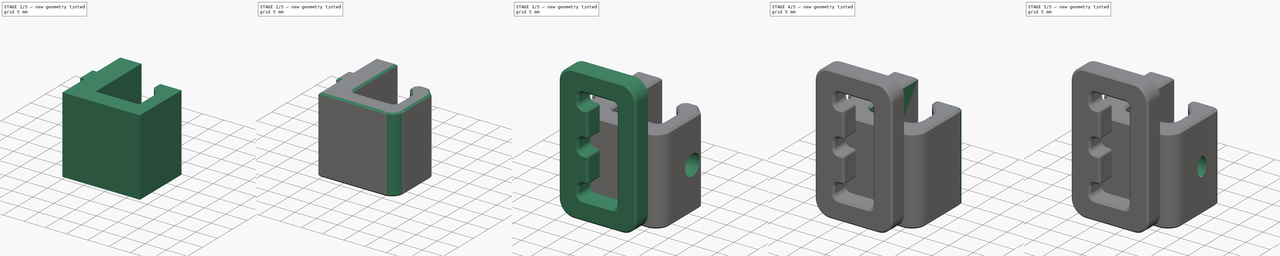
[diagram: build sequence overview — one tinted view per stage of 5, left to right]
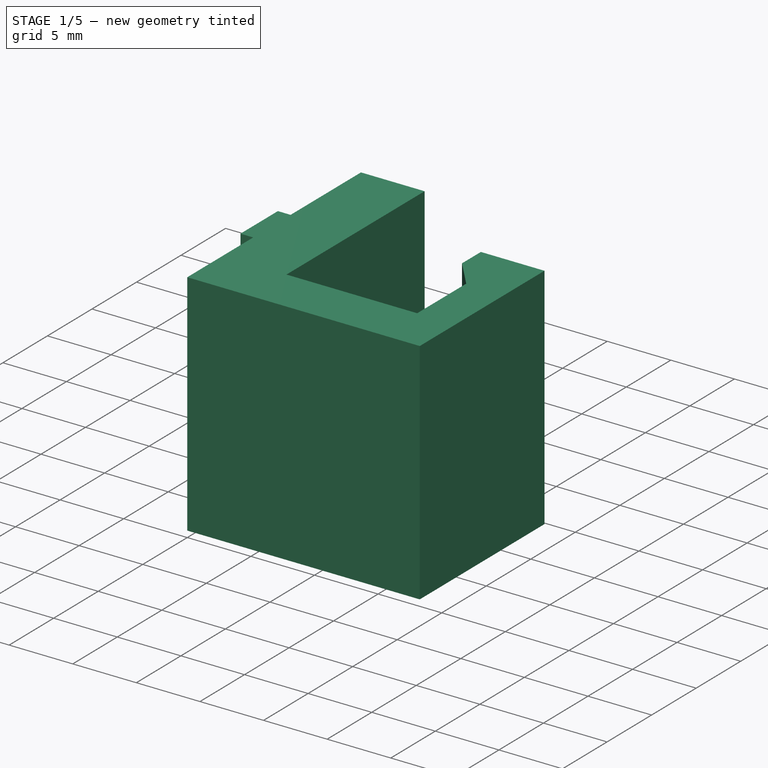
[diagram: stage 1 of 5 — iso view after this stage's code; geometry added in this stage tinted green]
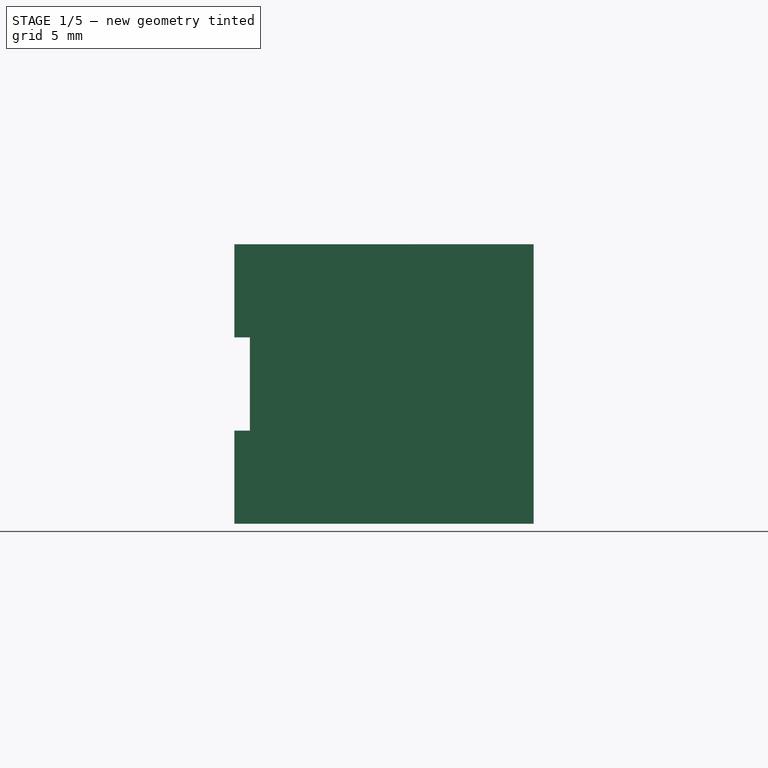
[diagram: stage 1 of 5 — front view after this stage's code; geometry added in this stage tinted green]
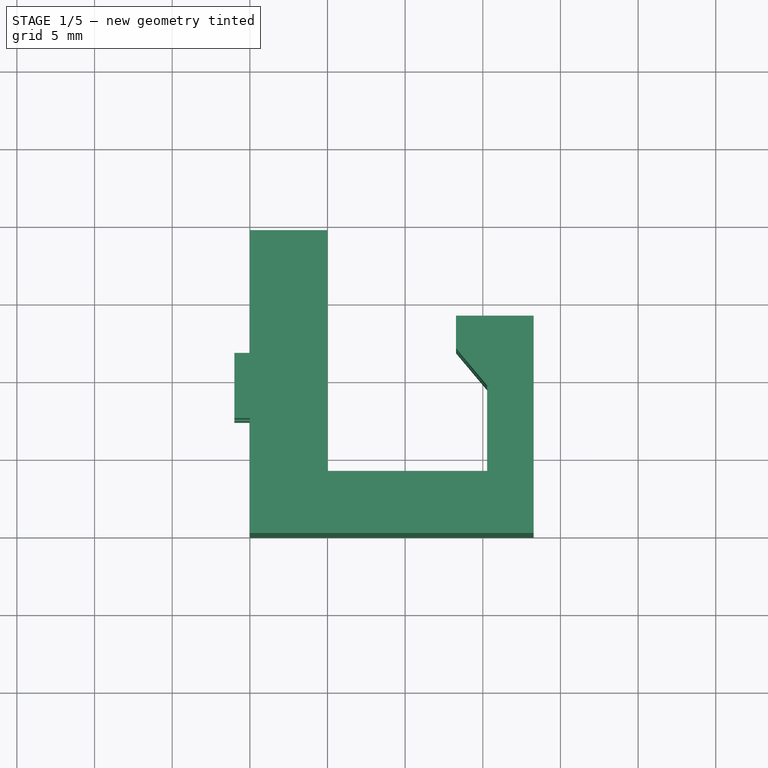
[diagram: stage 1 of 5 — top view after this stage's code; geometry added in this stage tinted green]
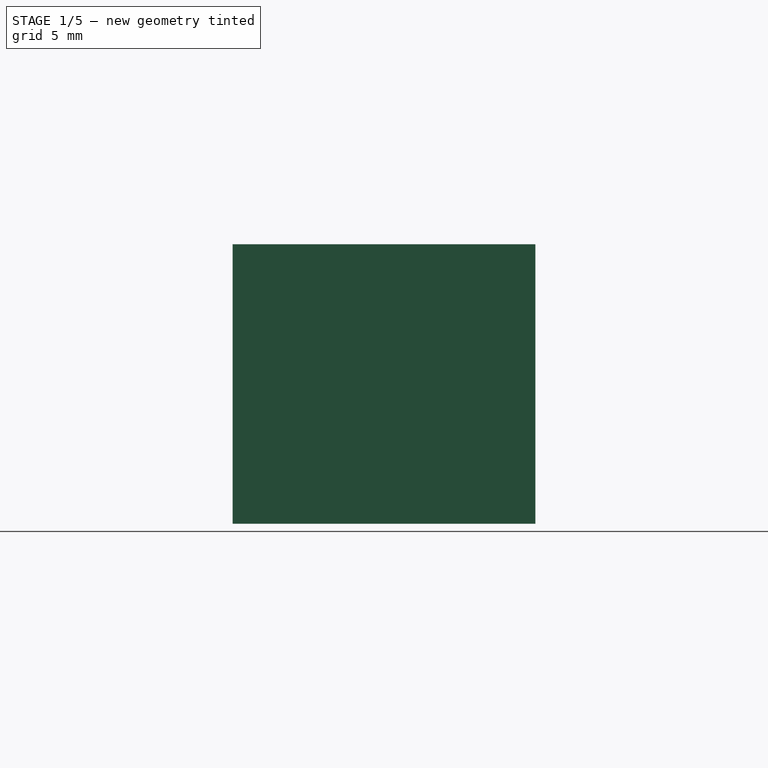
[diagram: stage 1 of 5 — right view after this stage's code; geometry added in this stage tinted green]
FCSTD DOCUMENT  (FreeCAD 0.19R24366 (Git))
Label: kotatsu-blanket-hooker
License: All rights reserved
LicenseURL: http://en.wikipedia.org/wiki/All_rights_reserved
objects: Sketcher::SketchObject×13, PartDesign::Pocket×11, PartDesign::Chamfer×10, PartDesign::Fillet×7, PartDesign::Body×4, PartDesign::Pad×2, PartDesign::FeatureBase×2
note: 79 computed .brp shape members not serialized (recipe doc carries the construction recipe); baked Part::Feature solids carry a one-line shape summary decoded from their .brp

FEATURE [Sketcher::SketchObject] Sketch
  FullyConstrained = true
  MapMode = 5
  Support = -> [XY_Plane]
  sketch-geometry (13):
    g0: LineSegment StartX=0 StartY=0 StartZ=0 EndX=0 EndY=7.4 EndZ=0
    g1: LineSegment StartX=0 StartY=7.4 StartZ=0 EndX=-1 EndY=7.4 EndZ=0
    g2: LineSegment StartX=-1 StartY=7.4 StartZ=0 EndX=-1 EndY=11.6 EndZ=0
    g3: LineSegment StartX=-1 StartY=11.6 StartZ=0 EndX=0 EndY=11.6 EndZ=0
    g4: LineSegment StartX=0 StartY=11.6 StartZ=0 EndX=0 EndY=19.5 EndZ=0
    g5: LineSegment StartX=0 StartY=19.5 StartZ=0 EndX=5 EndY=19.5 EndZ=0
    g6: LineSegment StartX=5 StartY=19.5 StartZ=0 EndX=5 EndY=4 EndZ=0
    g7: LineSegment StartX=5 StartY=4 StartZ=0 EndX=15.2759 EndY=4 EndZ=0
    g8: LineSegment StartX=15.2759 StartY=4 StartZ=0 EndX=15.2759 EndY=9.5 EndZ=0
    g9: LineSegment StartX=15.2759 StartY=9.5 StartZ=0 EndX=11.5 EndY=14 EndZ=0
    g10: LineSegment StartX=11.5 StartY=14 StartZ=0 EndX=18.2759 EndY=14 EndZ=0
    g11: LineSegment StartX=18.2759 StartY=14 StartZ=0 EndX=18.2759 EndY=0 EndZ=0
    g12: LineSegment StartX=18.2759 StartY=0 StartZ=0 EndX=0 EndY=0 EndZ=0
  constraints (38):
    c: Coincident(g-1,g0)
    c: PointOnObject(g0,g-2)
    c: Coincident(g0,g1)
    c: Horizontal(g1)
    c: Coincident(g1,g2)
    c: Vertical(g2)
    c: Coincident(g2,g3)
    c: PointOnObject(g3,g-2)
    c: Horizontal(g3)
    c: Coincident(g3,g4)
    c: PointOnObject(g4,g-2)
    c: Coincident(g4,g5)
    c: Horizontal(g5)
    c: Coincident(g5,g6)
    c: Vertical(g6)
    c: Coincident(g6,g7)
    c: Horizontal(g7)
    c: Coincident(g7,g8)
    c: Coincident(g8,g9)
    c: Coincident(g9,g10)
    c: Horizontal(g10)
    c: Coincident(g10,g11)
    c: PointOnObject(g11,g-1)
    c: Vertical(g11)
    c: Coincident(g11,g12)
    c: Coincident(g12,g0)
    c: DistanceY(g2,g2) = 4.2
    c: DistanceY(g0,g0) = 7.4
    c: DistanceY(g4,g4) = 7.9
    c: DistanceY(g10,g5) = 5.5
    c: DistanceX(g5,g5) = 5
    c: Angle(g9,g10) = 0.872665
    c: Vertical(g8)
    c: DistanceX(g6,g9) = 6.5
    c: DistanceX(g7,g11) = 3
    c: DistanceY(g8,g8) = 5.5
    c: DistanceY(g0,g6) = 4
    c: DistanceX(g3,g3) = 1
FEATURE [PartDesign::Pad] Pad
  Direction = (1,1,1)
  Length = 18
  Length2 = 100
  Profile = -> Sketch
  Type = 0
FEATURE [PartDesign::Body] Body002  label="ring"
  Group = -> [Sketch006,Pad001,Fillet002,Fillet003,Fillet004,Chamfer005]
  Origin = -> Origin002
  Placement = pos=(24,9,23) rot=(0,1,0;3.14159rad)
  Tip = -> Chamfer005
FEATURE [PartDesign::FeatureBase] Clone001
  BaseFeature = -> Pad
FEATURE [Sketcher::SketchObject] Sketch007
  ExternalGeometry = -> [Clone001]
  FullyConstrained = true
  MapMode = 5
  Placement = pos=(0,0,0) rot=(1,0,0;3.14159rad)
  Support = -> [Clone001]
  sketch-geometry (3):
    g0: LineSegment StartX=13.2759 StartY=-14 StartZ=0 EndX=13.2759 EndY=-11.8835 EndZ=0
    g1: LineSegment StartX=13.2759 StartY=-11.8835 StartZ=0 EndX=11.5 EndY=-14 EndZ=0
    g2: LineSegment StartX=11.5 StartY=-14 StartZ=0 EndX=13.2759 EndY=-14 EndZ=0
  constraints (8):
    c: PointOnObject(g0,g-4)
    c: PointOnObject(g0,g-3)
    c: Vertical(g0)
    c: Coincident(g0,g1)
    c: Coincident(g1,g-4)
    c: Coincident(g1,g2)
    c: Coincident(g2,g0)
    c: DistanceX(g0,g-3) = 2
FEATURE [PartDesign::Pocket] Pocket005
  BaseFeature = -> Clone001
  Length = 5
  Length2 = 100
  Profile = -> Sketch007
  Type = 1
FEATURE [Sketcher::SketchObject] Sketch008
  FullyConstrained = true
  MapMode = 5
  Placement = pos=(5,0,0) rot=(0.57735,0.57735,0.57735;2.0944rad)
  Support = -> [Pocket005]
  sketch-geometry (1):
    g0: Circle CenterX=9.5 CenterY=9 CenterZ=0 NormalX=0 NormalY=0 NormalZ=1 AngleXU=0 Radius=2.15
  constraints (3):
    c: DistanceY(g-1,g0) = 9
    c: DistanceX(g-1,g0) = 9.5
    c: Radius(g0) = 2.15
FEATURE [PartDesign::Pocket] Pocket006
  BaseFeature = -> Pocket005
  Length = 5
  Length2 = 100
  Profile = -> Sketch008
  Type = 1
FEATURE [Sketcher::SketchObject] Sketch009
  ExternalGeometry = -> [Pocket006]
  FullyConstrained = true
  MapMode = 5
  Placement = pos=(0,14,0) rot=(0,0.707107,0.707107;3.14159rad)
  Support = -> [Pocket006]
  sketch-geometry (4):
    g0: LineSegment StartX=-13.2759 StartY=16 StartZ=0 EndX=-15.2759 EndY=12 EndZ=0
    g1: LineSegment StartX=-15.2759 StartY=12 StartZ=0 EndX=-15.2759 EndY=6 EndZ=0
    g2: LineSegment StartX=-15.2759 StartY=6 StartZ=0 EndX=-13.2759 EndY=2 EndZ=0
    g3: LineSegment StartX=-13.2759 StartY=2 StartZ=0 EndX=-13.2759 EndY=16 EndZ=0
  constraints (12):
    c: PointOnObject(g0,g-3)
    c: Coincident(g0,g1)
    c: Vertical(g1)
    c: Coincident(g1,g2)
    c: PointOnObject(g2,g-3)
    c: Coincident(g2,g3)
    c: Coincident(g3,g0)
    c: DistanceX(g0,g-3) = 2
    c: DistanceY(g0,g-3) = 2
    c: DistanceY(g-3,g2) = 2
    c: DistanceY(g0,g0) = 4
    c: DistanceY(g2,g1) = 4
FEATURE [PartDesign::Pocket] Pocket007
  BaseFeature = -> Pocket006
  Length = 5
  Length2 = 100
  Profile = -> Sketch009
  Type = 0
FEATURE [Sketcher::SketchObject] Sketch010
  ExternalGeometry = -> [Pocket007]
  FullyConstrained = true
  MapMode = 5
  Placement = pos=(-1,0,0) rot=(0.57735,-0.57735,-0.57735;2.0944rad)
  Support = -> [Pocket007]
  sketch-geometry (4):
    g0: LineSegment StartX=-11.6 StartY=12 StartZ=0 EndX=-7.4 EndY=12 EndZ=0
    g1: LineSegment StartX=-7.4 StartY=12 StartZ=0 EndX=-7.4 EndY=6 EndZ=0
    g2: LineSegment StartX=-7.4 StartY=6 StartZ=0 EndX=-11.6 EndY=6 EndZ=0
    g3: LineSegment StartX=-11.6 StartY=6 StartZ=0 EndX=-11.6 EndY=12 EndZ=0
  constraints (12):
    c: Coincident(g0,g1)
    c: Coincident(g1,g2)
    c: Coincident(g2,g3)
    c: Coincident(g3,g0)
    c: Horizontal(g0)
    c: Horizontal(g2)
    c: Vertical(g1)
    c: Vertical(g3)
    c: PointOnObject(g0,g-3)
    c: PointOnObject(g1,g-4)
    c: DistanceY(g0,g-3) = 6
    c: DistanceY(g-4,g1) = 6
FEATURE [PartDesign::Pocket] Pocket008
  BaseFeature = -> Pocket007
  Length = 1
  Length2 = 100
  Profile = -> Sketch010
  Type = 0
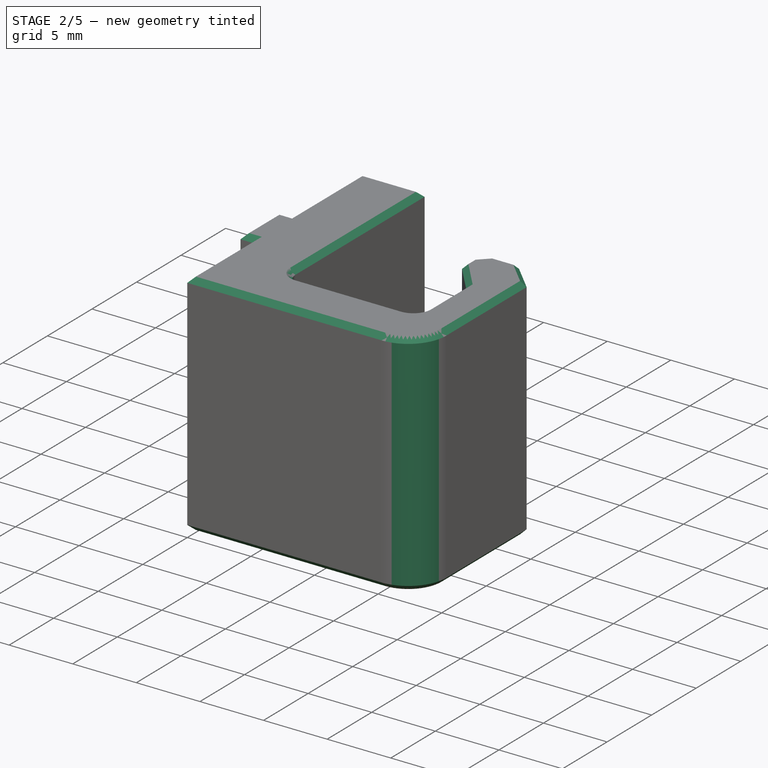
[diagram: stage 2 of 5 — iso view after this stage's code; geometry added in this stage tinted green]
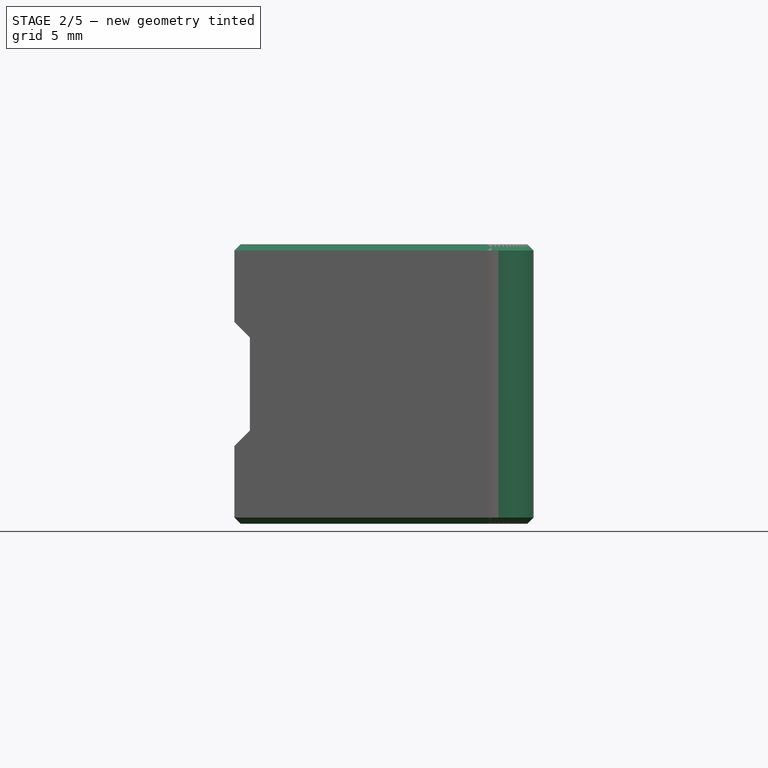
[diagram: stage 2 of 5 — front view after this stage's code; geometry added in this stage tinted green]
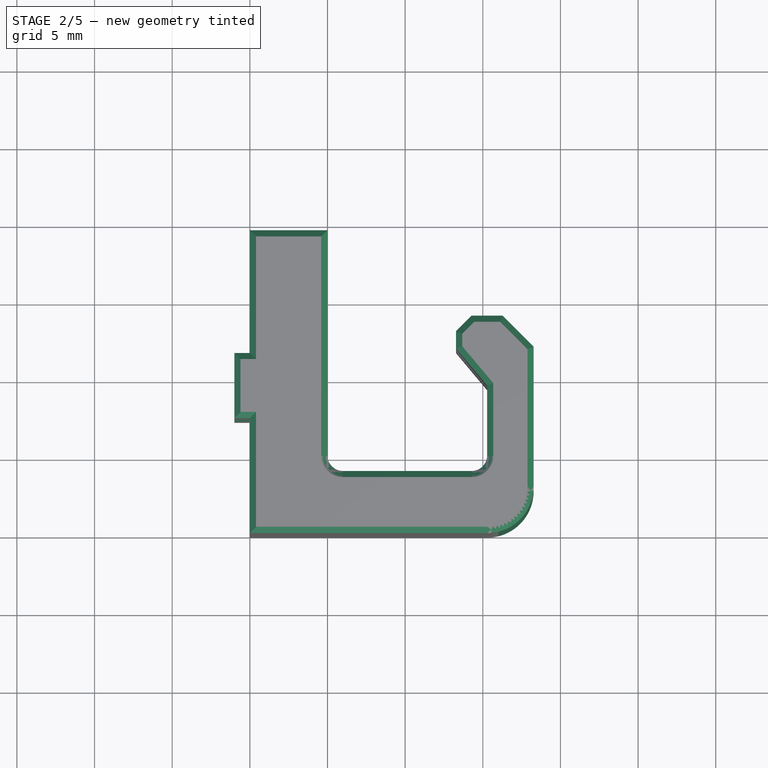
[diagram: stage 2 of 5 — top view after this stage's code; geometry added in this stage tinted green]
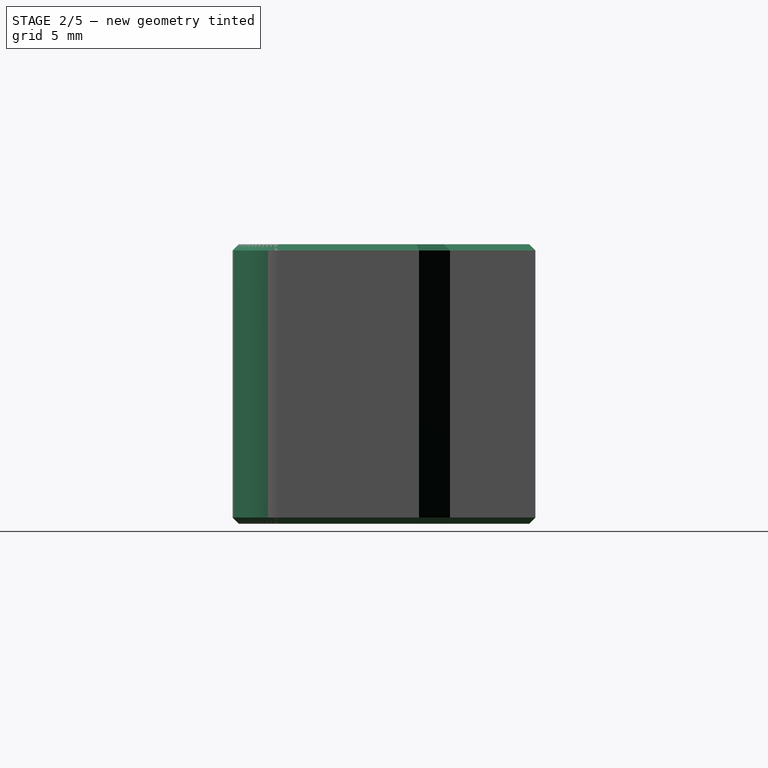
[diagram: stage 2 of 5 — right view after this stage's code; geometry added in this stage tinted green]
FEATURE [PartDesign::Chamfer] Chamfer006
  Angle = 45
  Base = -> Pocket008 [Edge74,Edge72]
  BaseFeature = -> Pocket008
  ChamferType = 0
  FlipDirection = false
  Refine = true
  Size = 0.99
  Size2 = 1
  SupportTransform = false
FEATURE [PartDesign::Fillet] Fillet005
  Base = -> Chamfer006 [Edge42,Edge41]
  BaseFeature = -> Chamfer006
  Radius = 1
  SupportTransform = false
FEATURE [PartDesign::Fillet] Fillet006
  Base = -> Fillet005 [Edge42]
  BaseFeature = -> Fillet005
  Radius = 3
  SupportTransform = false
FEATURE [PartDesign::Chamfer] Chamfer007
  Angle = 45
  Base = -> Fillet006 [Edge19]
  BaseFeature = -> Fillet006
  ChamferType = 0
  FlipDirection = false
  Size = 2
  Size2 = 1
  SupportTransform = false
FEATURE [PartDesign::Chamfer] Chamfer008
  Angle = 45
  Base = -> Chamfer007 [Edge29,Edge26]
  BaseFeature = -> Chamfer007
  ChamferType = 0
  FlipDirection = false
  Size = 1
  Size2 = 1
  SupportTransform = false
FEATURE [Sketcher::SketchObject] Sketch011
  ExternalGeometry = -> [Chamfer008]
  FullyConstrained = true
  MapMode = 5
  Placement = pos=(5,0,0) rot=(0.57735,0.57735,0.57735;2.0944rad)
  Support = -> [Chamfer008]
  sketch-geometry (4):
    g0: ArcOfCircle CenterX=9.5 CenterY=9 CenterZ=0 NormalX=0 NormalY=0 NormalZ=1 AngleXU=0 Radius=4.5 StartAngle=0 EndAngle=3.14159
    g1: LineSegment StartX=5 StartY=0 StartZ=0 EndX=5 EndY=9 EndZ=0
    g2: LineSegment StartX=14 StartY=0 StartZ=0 EndX=14 EndY=9 EndZ=0
    g3: LineSegment StartX=5 StartY=0 StartZ=0 EndX=14 EndY=0 EndZ=0
  constraints (12):
    c: Coincident(g0,g-3)
    c: Horizontal(g0,g0)
    c: Horizontal(g0,g0)
    c: PointOnObject(g1,g-1)
    c: Coincident(g1,g0)
    c: Vertical(g1)
    c: PointOnObject(g2,g-1)
    c: Coincident(g2,g0)
    c: Vertical(g2)
    c: Coincident(g3,g1)
    c: Coincident(g3,g2)
    c: Radius(g0) = 4.5
FEATURE [PartDesign::Pocket] Pocket009
  BaseFeature = -> Chamfer008
  Length = 2
  Length2 = 100
  Profile = -> Sketch011
  Type = 0
FEATURE [PartDesign::Chamfer] Chamfer009
  Angle = 45
  Base = -> Pocket009 [Face24,Face1]
  BaseFeature = -> Pocket009
  ChamferType = 0
  FlipDirection = false
  Size = 0.4
  Size2 = 1
  SupportTransform = false
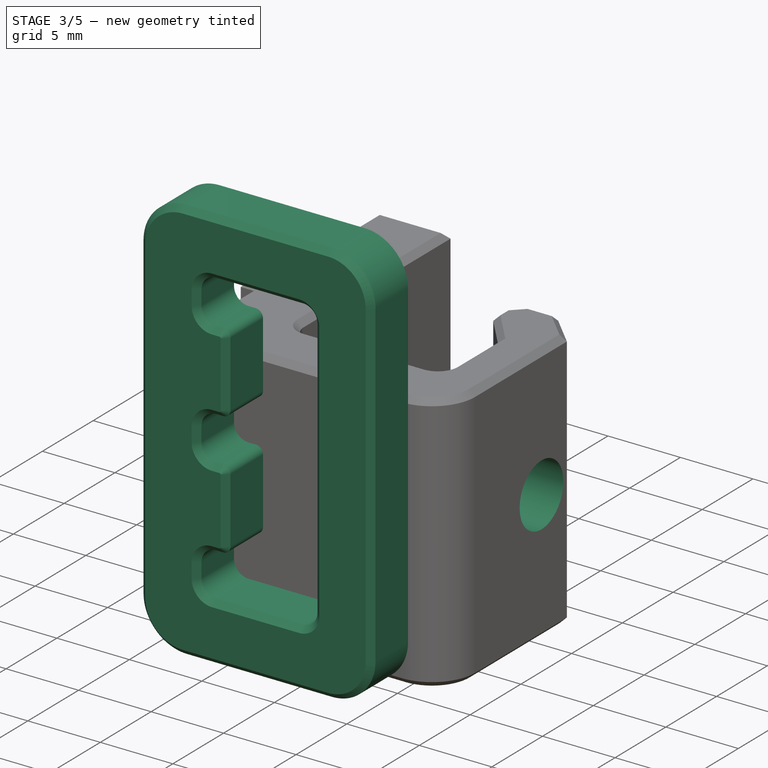
[diagram: stage 3 of 5 — iso view after this stage's code; geometry added in this stage tinted green]
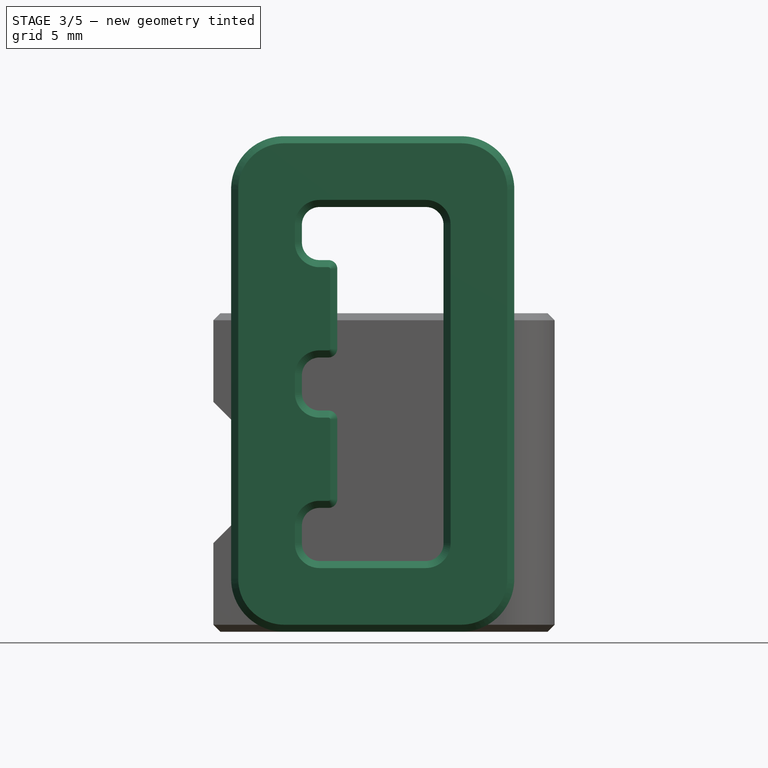
[diagram: stage 3 of 5 — front view after this stage's code; geometry added in this stage tinted green]
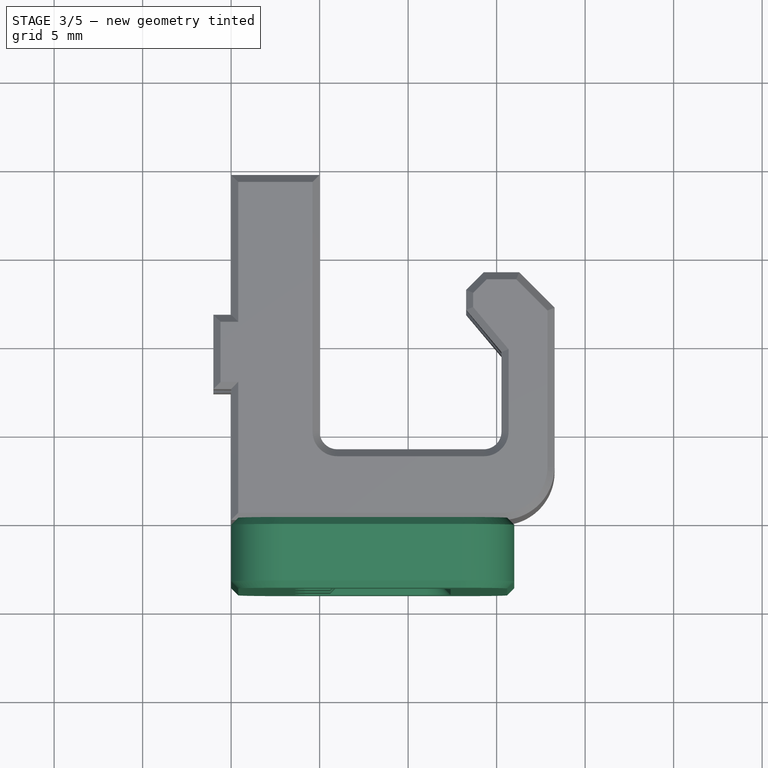
[diagram: stage 3 of 5 — top view after this stage's code; geometry added in this stage tinted green]
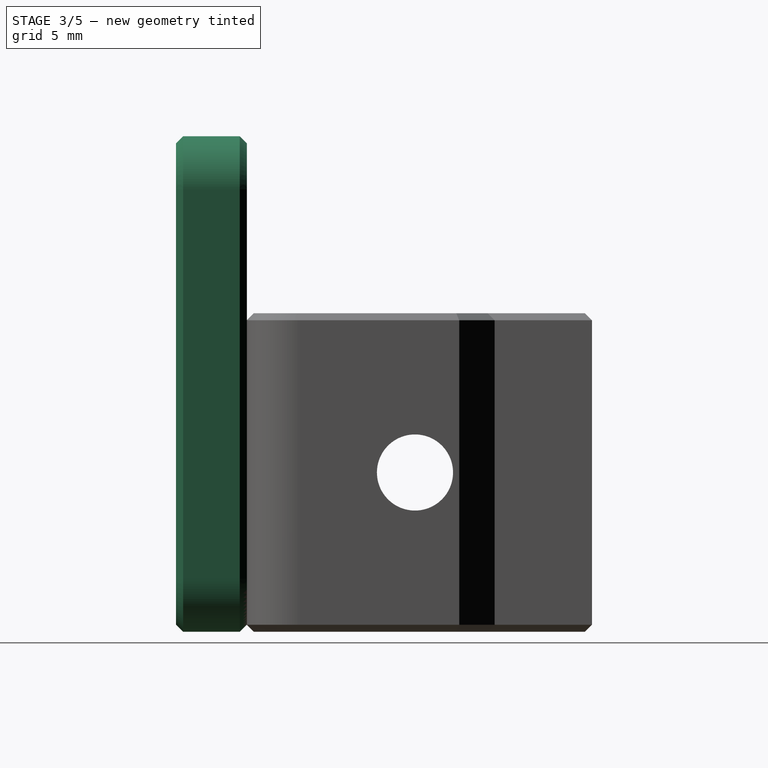
[diagram: stage 3 of 5 — right view after this stage's code; geometry added in this stage tinted green]
FEATURE [PartDesign::Body] Body001  label="m4-base"
  BaseFeature = -> Body
  Group = -> [Clone,Sketch001,Pocket,Sketch002,Pocket001,Sketch003,Pocket002,Sketch004,Pocket003,Sketch005,Pocket004,Chamfer004]
  Origin = -> Origin001
  Tip = -> Chamfer004
FEATURE [Sketcher::SketchObject] Sketch006
  FullyConstrained = true
  MapMode = 5
  Placement = pos=(0,0,0) rot=(1,0,0;1.5708rad)
  Support = -> [XZ_Plane002]
  sketch-geometry (16):
    g0: LineSegment StartX=0 StartY=0 StartZ=0 EndX=16 EndY=0 EndZ=0
    g1: LineSegment StartX=16 StartY=0 StartZ=0 EndX=16 EndY=28 EndZ=0
    g2: LineSegment StartX=16 StartY=28 StartZ=0 EndX=0 EndY=28 EndZ=0
    g3: LineSegment StartX=0 StartY=28 StartZ=0 EndX=0 EndY=0 EndZ=0
    g4: LineSegment StartX=4 StartY=24 StartZ=0 EndX=12 EndY=24 EndZ=0
    g5: LineSegment StartX=12 StartY=24 StartZ=0 EndX=12 EndY=4 EndZ=0
    g6: LineSegment StartX=12 StartY=4 StartZ=0 EndX=4 EndY=4 EndZ=0
    g7: LineSegment StartX=4 StartY=4 StartZ=0 EndX=4 EndY=7 EndZ=0
    g8: LineSegment StartX=4 StartY=7 StartZ=0 EndX=6 EndY=7 EndZ=0
    g9: LineSegment StartX=6 StartY=7 StartZ=0 EndX=6 EndY=12.5 EndZ=0
    g10: LineSegment StartX=6 StartY=12.5 StartZ=0 EndX=4 EndY=12.5 EndZ=0
    g11: LineSegment StartX=4 StartY=12.5 StartZ=0 EndX=4 EndY=15.5 EndZ=0
    g12: LineSegment StartX=4 StartY=15.5 StartZ=0 EndX=6 EndY=15.5 EndZ=0
    g13: LineSegment StartX=6 StartY=15.5 StartZ=0 EndX=6 EndY=21 EndZ=0
    g14: LineSegment StartX=6 StartY=21 StartZ=0 EndX=4 EndY=21 EndZ=0
    g15: LineSegment StartX=4 StartY=21 StartZ=0 EndX=4 EndY=24 EndZ=0
  constraints (47):
    c: Coincident(g0,g1)
    c: Coincident(g1,g2)
    c: Coincident(g2,g3)
    c: Coincident(g3,g0)
    c: Horizontal(g0)
    c: Horizontal(g2)
    c: Vertical(g1)
    c: Vertical(g3)
    c: Coincident(g0,g-1)
    c: Horizontal(g4)
    c: Coincident(g4,g5)
    c: Vertical(g5)
    c: Coincident(g5,g6)
    c: Horizontal(g6)
    c: Coincident(g6,g7)
    c: Vertical(g7)
    c: Coincident(g7,g8)
    c: Horizontal(g8)
    c: Coincident(g8,g9)
    c: Vertical(g9)
    c: Coincident(g9,g10)
    c: Horizontal(g10)
    c: Coincident(g10,g11)
    c: Vertical(g11)
    c: Coincident(g11,g12)
    c: Horizontal(g12)
    c: Coincident(g12,g13)
    c: Vertical(g13)
    c: Coincident(g13,g14)
    c: Horizontal(g14)
    c: Coincident(g14,g15)
    c: Coincident(g15,g4)
    c: Vertical(g15)
    c: Vertical(g14,g11)
    c: Vertical(g11,g7)
    c: Equal(g7,g11)
    c: Equal(g11,g15)
    c: Equal(g9,g13)
    c: DistanceY(g5,g5) = 20
    c: DistanceY(g15,g15) = 3
    c: Vertical(g12,g9)
    c: DistanceX(g14,g14) = 2
    c: DistanceX(g2,g4) = 4
    c: DistanceX(g4,g1) = 4
    c: DistanceY(g0,g6) = 4
    c: DistanceY(g4,g2) = 4
    c: DistanceX(g13,g4) = 6
FEATURE [PartDesign::Pad] Pad001
  Direction = (1,1,1)
  Length = 4
  Length2 = 100
  Placement = pos=(0,0,0) rot=(1,0,0;1.5708rad)
  Profile = -> Sketch006
  Type = 0
FEATURE [PartDesign::Fillet] Fillet002
  Base = -> Pad001 [Edge1,Edge8,Edge5,Edge2]
  BaseFeature = -> Pad001
  Placement = pos=(0,0,0) rot=(1,0,0;1.5708rad)
  Radius = 3
  SupportTransform = false
FEATURE [PartDesign::Fillet] Fillet003
  Base = -> Fillet002 [Edge51,Edge50,Edge49,Edge57,Edge53,Edge60,Edge56,Edge52]
  BaseFeature = -> Fillet002
  Placement = pos=(0,0,0) rot=(1,0,0;1.5708rad)
  Radius = 1
  SupportTransform = false
FEATURE [PartDesign::Fillet] Fillet004
  Base = -> Fillet003 [Edge44,Edge48,Edge66,Edge62]
  BaseFeature = -> Fillet003
  Placement = pos=(0,0,0) rot=(1,0,0;1.5708rad)
  Radius = 0.5
  SupportTransform = false
FEATURE [PartDesign::Chamfer] Chamfer005
  Angle = 45
  Base = -> Fillet004 [Face1,Face34]
  BaseFeature = -> Fillet004
  ChamferType = 0
  FlipDirection = false
  Placement = pos=(0,0,0) rot=(1,0,0;1.5708rad)
  Size = 0.4
  Size2 = 1
  SupportTransform = false
FEATURE [Sketcher::SketchObject] Sketch012
  ExternalGeometry = -> [Chamfer009]
  FullyConstrained = true
  MapMode = 5
  Placement = pos=(18.2759,0,0) rot=(0.57735,0.57735,0.57735;2.0944rad)
  Support = -> [Chamfer009]
  sketch-geometry (1):
    g0: Circle CenterX=9.5 CenterY=9 CenterZ=0 NormalX=0 NormalY=0 NormalZ=1 AngleXU=0 Radius=2.15
  constraints (2):
    c: Coincident(g0,g-3)
    c: Radius(g0) = 2.15
FEATURE [PartDesign::Pocket] Pocket010
  BaseFeature = -> Chamfer009
  Length = 5
  Length2 = 100
  Profile = -> Sketch012
  Type = 0
FEATURE [PartDesign::Body] Body003
  Group = -> [Clone001,Sketch007,Pocket005,Sketch008,Pocket006,Sketch009,Pocket007,Sketch010,Pocket008,Chamfer006,Fillet005,Fillet006,Chamfer007,Chamfer008,Sketch011,Pocket009,Chamfer009,Sketch012,Pocket010]
  Origin = -> Origin003
  Tip = -> Pocket010
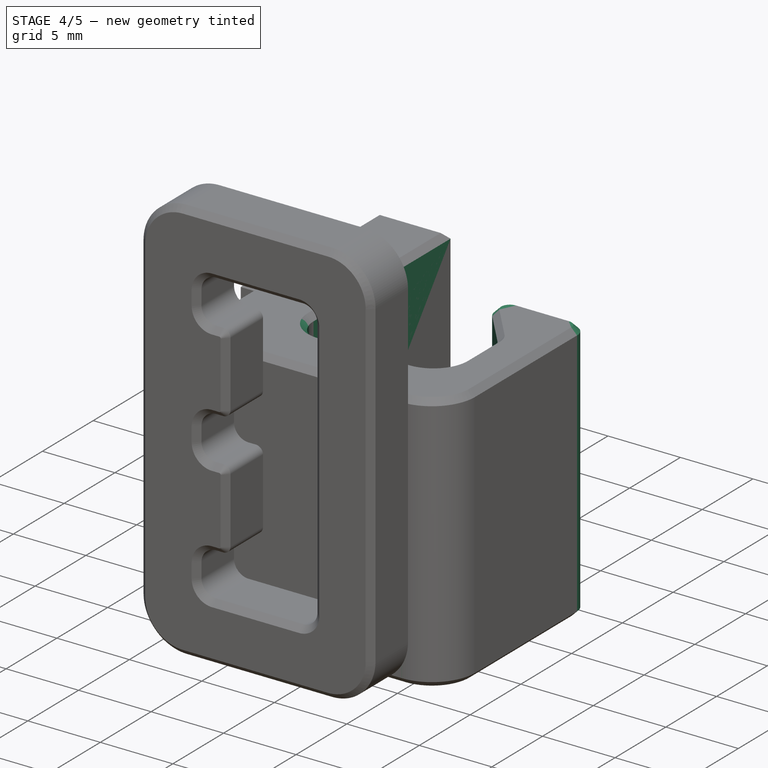
[diagram: stage 4 of 5 — iso view after this stage's code; geometry added in this stage tinted green]
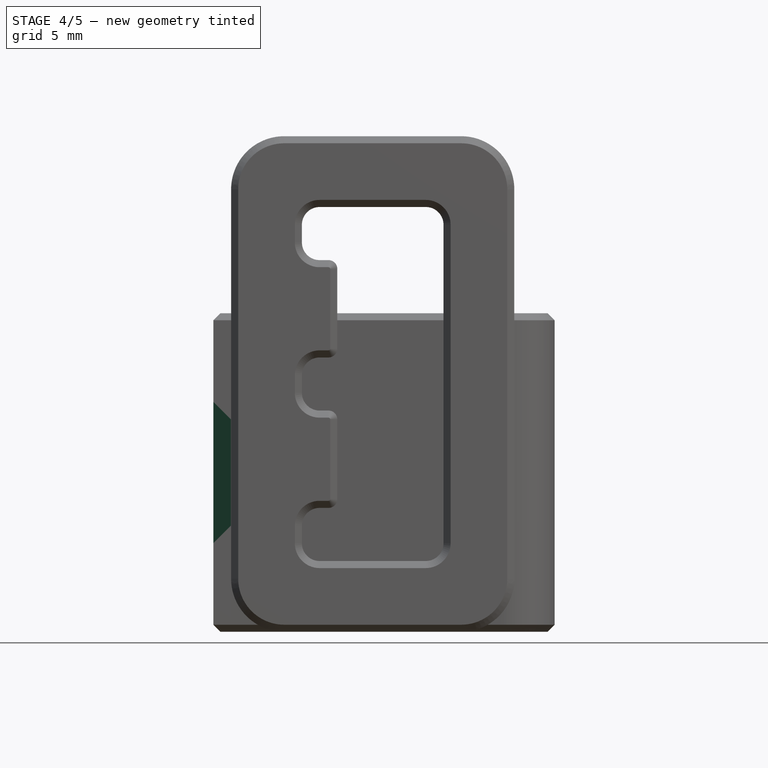
[diagram: stage 4 of 5 — front view after this stage's code; geometry added in this stage tinted green]
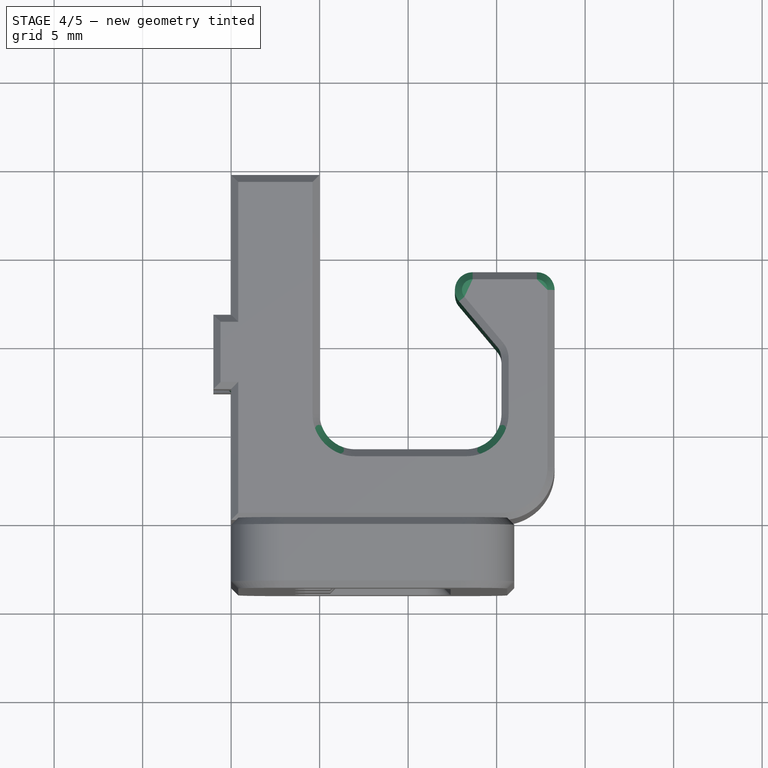
[diagram: stage 4 of 5 — top view after this stage's code; geometry added in this stage tinted green]
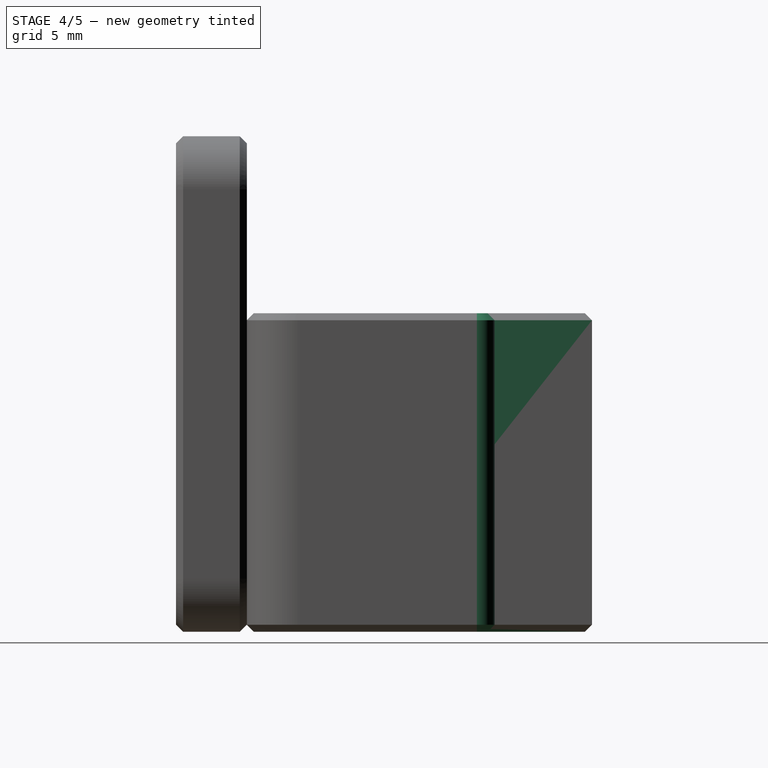
[diagram: stage 4 of 5 — right view after this stage's code; geometry added in this stage tinted green]
FEATURE [PartDesign::Chamfer] Chamfer
  Angle = 45
  Base = -> Pad [Edge5]
  BaseFeature = -> Pad
  ChamferType = 0
  FlipDirection = false
  Size = 0.99
  Size2 = 1
  SupportTransform = false
FEATURE [PartDesign::Fillet] Fillet
  Base = -> Chamfer [Edge41,Edge42]
  BaseFeature = -> Chamfer
  Radius = 2
  SupportTransform = false
FEATURE [PartDesign::Fillet] Fillet001
  Base = -> Fillet [Edge36,Edge32,Edge40]
  BaseFeature = -> Fillet
  Radius = 1
  SupportTransform = false
FEATURE [PartDesign::Chamfer] Chamfer001
  Angle = 45
  Base = -> Fillet001 [Edge43]
  BaseFeature = -> Fillet001
  ChamferType = 0
  FlipDirection = false
  Size = 3
  Size2 = 1
  SupportTransform = false
FEATURE [PartDesign::Chamfer] Chamfer002
  Angle = 45
  Base = -> Chamfer001 [Edge28]
  BaseFeature = -> Chamfer001
  ChamferType = 0
  FlipDirection = false
  Size = 1
  Size2 = 1
  SupportTransform = false
FEATURE [PartDesign::Chamfer] Chamfer003
  Angle = 45
  Base = -> Chamfer002 [Face23,Face1]
  BaseFeature = -> Chamfer002
  ChamferType = 0
  FlipDirection = false
  Size = 0.4
  Size2 = 1
  SupportTransform = false
FEATURE [PartDesign::Body] Body  label="base"
  Group = -> [Sketch,Pad,Chamfer,Fillet,Fillet001,Chamfer001,Chamfer002,Chamfer003]
  Origin = -> Origin
  Tip = -> Chamfer003
FEATURE [PartDesign::FeatureBase] Clone
  BaseFeature = -> Body
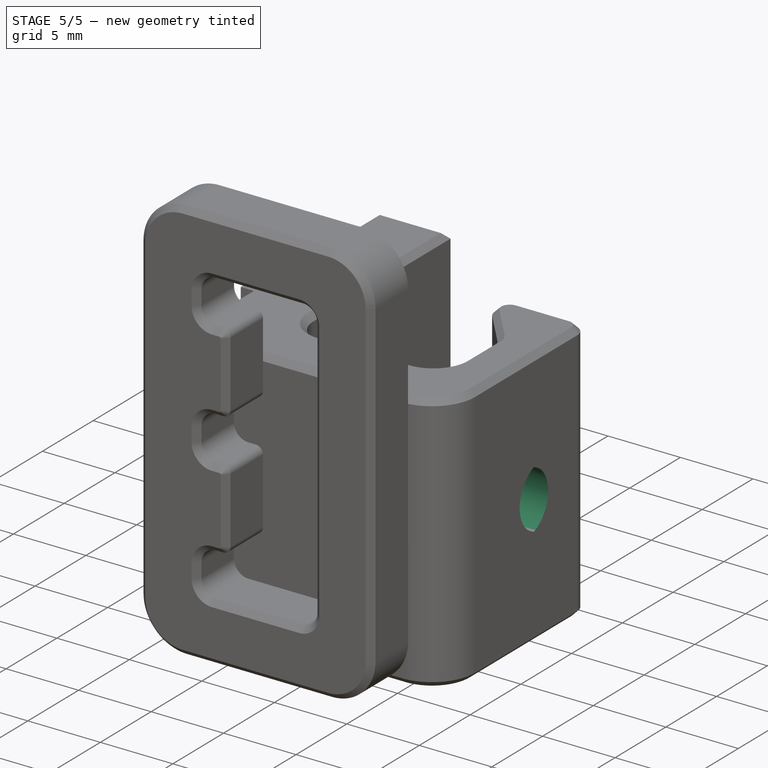
[diagram: stage 5 of 5 — iso view after this stage's code; geometry added in this stage tinted green]
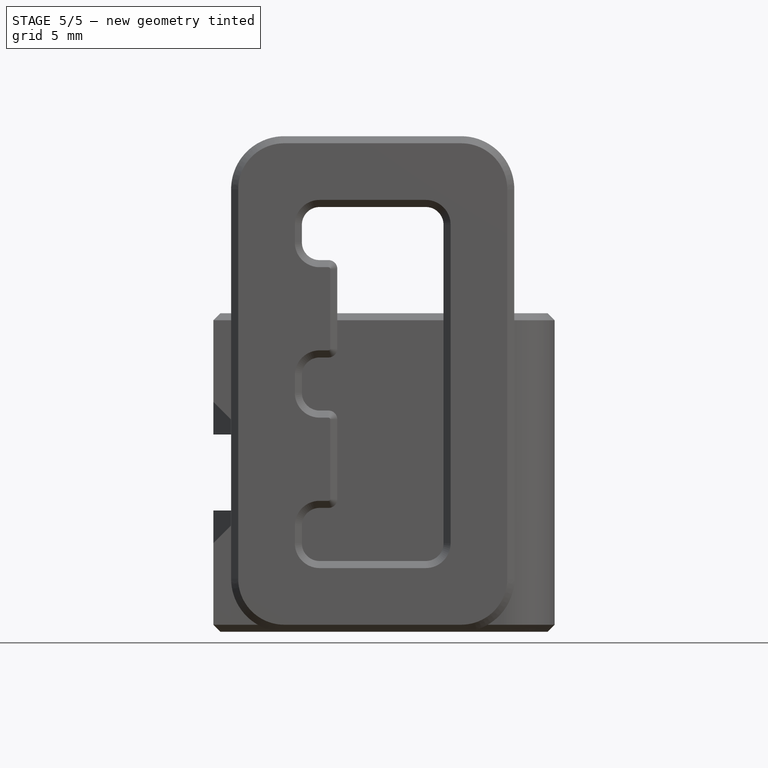
[diagram: stage 5 of 5 — front view after this stage's code; geometry added in this stage tinted green]
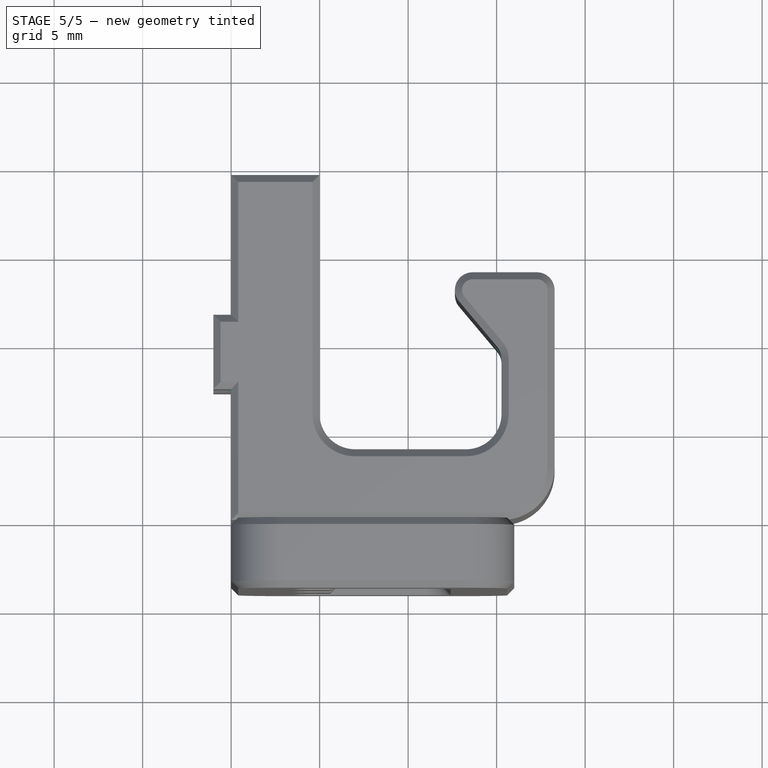
[diagram: stage 5 of 5 — top view after this stage's code; geometry added in this stage tinted green]
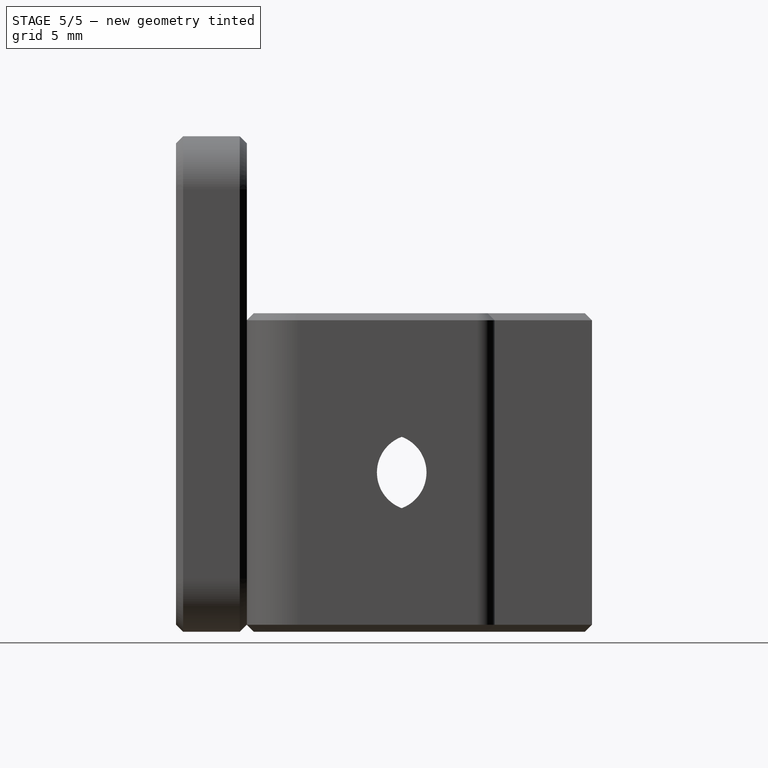
[diagram: stage 5 of 5 — right view after this stage's code; geometry added in this stage tinted green]
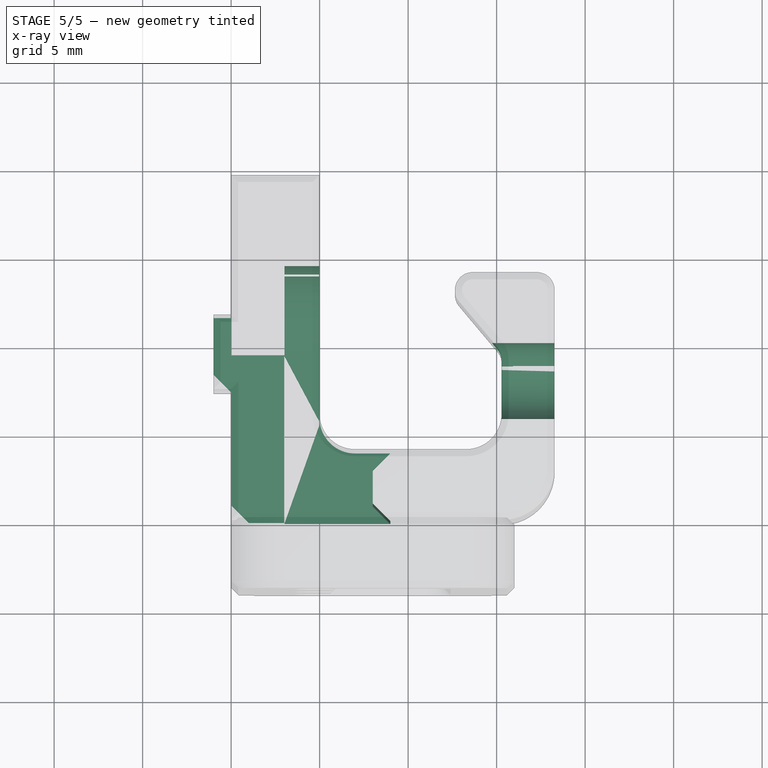
[diagram: stage 5 of 5 — x-ray composite at the top view; earlier geometry ghosted, this stage's added geometry solid]
FEATURE [Sketcher::SketchObject] Sketch001
  FullyConstrained = true
  MapMode = 5
  Placement = pos=(-1,0,0) rot=(0.57735,-0.57735,-0.57735;2.0944rad)
  Support = -> [Clone]
  sketch-geometry (4):
    g0: ArcOfCircle CenterX=-9.5 CenterY=9 CenterZ=0 NormalX=0 NormalY=0 NormalZ=1 AngleXU=0 Radius=2.15 StartAngle=1.5708 EndAngle=4.71239
    g1: LineSegment StartX=0 StartY=11.15 StartZ=0 EndX=-9.5 EndY=11.15 EndZ=0
    g2: LineSegment StartX=0 StartY=6.85 StartZ=0 EndX=-9.5 EndY=6.85 EndZ=0
    g3: LineSegment StartX=0 StartY=6.85 StartZ=0 EndX=0 EndY=11.15 EndZ=0
  constraints (13):
    c: Vertical(g0,g0)
    c: Vertical(g0,g0)
    c: DistanceY(g-1,g0) = 9
    c: DistanceX(g0,g-1) = 9.5
    c: Radius(g0) = 2.15
    c: PointOnObject(g1,g-2)
    c: Coincident(g1,g0)
    c: Horizontal(g1)
    c: PointOnObject(g2,g-2)
    c: Coincident(g2,g0)
    c: Horizontal(g2)
    c: Coincident(g3,g2)
    c: Coincident(g3,g1)
FEATURE [PartDesign::Pocket] Pocket
  BaseFeature = -> Clone
  Length = 9
  Length2 = 100
  Profile = -> Sketch001
  Type = 0
FEATURE [Sketcher::SketchObject] Sketch002
  FullyConstrained = true
  MapMode = 5
  Placement = pos=(18.2759,0,0) rot=(0.57735,0.57735,0.57735;2.0944rad)
  Support = -> [Pocket]
  sketch-geometry (1):
    g0: Circle CenterX=8 CenterY=9 CenterZ=0 NormalX=0 NormalY=0 NormalZ=1 AngleXU=0 Radius=2.15
  constraints (3):
    c: DistanceX(g-1,g0) = 8
    c: DistanceY(g-1,g0) = 9
    c: Radius(g0) = 2.15
FEATURE [PartDesign::Pocket] Pocket001
  BaseFeature = -> Pocket
  Length = 5
  Length2 = 100
  Profile = -> Sketch002
  Type = 0
FEATURE [Sketcher::SketchObject] Sketch003
  ExternalGeometry = -> [Pocket001]
  FullyConstrained = true
  MapMode = 5
  Placement = pos=(0,0,0) rot=(1,0,0;1.5708rad)
  Support = -> [Pocket001]
  sketch-geometry (4):
    g0: LineSegment StartX=3 StartY=14 StartZ=0 EndX=8 EndY=14 EndZ=0
    g1: LineSegment StartX=8 StartY=14 StartZ=0 EndX=8 EndY=4 EndZ=0
    g2: LineSegment StartX=8 StartY=4 StartZ=0 EndX=3 EndY=4 EndZ=0
    g3: LineSegment StartX=3 StartY=4 StartZ=0 EndX=3 EndY=14 EndZ=0
  constraints (12):
    c: Coincident(g0,g1)
    c: Coincident(g1,g2)
    c: Coincident(g2,g3)
    c: Coincident(g3,g0)
    c: Horizontal(g0)
    c: Horizontal(g2)
    c: Vertical(g1)
    c: Vertical(g3)
    c: DistanceY(g0,g-3) = 4
    c: DistanceY(g-1,g2) = 4
    c: Vertical(g-5,g0)
    c: DistanceX(g0,g-4) = 2
FEATURE [PartDesign::Pocket] Pocket002
  BaseFeature = -> Pocket001
  Length = 9.5
  Length2 = 100
  Profile = -> Sketch003
  Type = 0
FEATURE [Sketcher::SketchObject] Sketch004
  ExternalGeometry = -> [Pocket002]
  FullyConstrained = true
  MapMode = 5
  Placement = pos=(5,0,0) rot=(0.57735,0.57735,0.57735;2.0944rad)
  Support = -> [Pocket002]
  sketch-geometry (2):
    g0: ArcOfCircle CenterX=9.5 CenterY=9 CenterZ=0 NormalX=0 NormalY=0 NormalZ=1 AngleXU=0 Radius=5 StartAngle=4.71239 EndAngle=7.85398
    g1: LineSegment StartX=9.5 StartY=14 StartZ=0 EndX=9.5 EndY=4 EndZ=0
  constraints (5):
    c: Coincident(g0,g-3)
    c: Coincident(g0,g-4)
    c: Coincident(g0,g-5)
    c: Coincident(g1,g0)
    c: Coincident(g1,g0)
FEATURE [PartDesign::Pocket] Pocket003
  BaseFeature = -> Pocket002
  Length = 2
  Length2 = 100
  Profile = -> Sketch004
  Refine = true
  Type = 0
FEATURE [Sketcher::SketchObject] Sketch005
  ExternalGeometry = -> [Pocket003]
  FullyConstrained = true
  MapMode = 5
  Placement = pos=(-1,0,0) rot=(0.57735,-0.57735,-0.57735;2.0944rad)
  Support = -> [Pocket003]
  sketch-geometry (4):
    g0: LineSegment StartX=-7.4 StartY=11.15 StartZ=0 EndX=-13.4 EndY=11.15 EndZ=0
    g1: LineSegment StartX=-13.4 StartY=11.15 StartZ=0 EndX=-13.4 EndY=6.85 EndZ=0
    g2: LineSegment StartX=-13.4 StartY=6.85 StartZ=0 EndX=-7.4 EndY=6.85 EndZ=0
    g3: LineSegment StartX=-7.4 StartY=6.85 StartZ=0 EndX=-7.4 EndY=11.15 EndZ=0
  constraints (11):
    c: Coincident(g0,g1)
    c: Coincident(g1,g2)
    c: Coincident(g2,g3)
    c: Coincident(g3,g0)
    c: Horizontal(g0)
    c: Horizontal(g2)
    c: Vertical(g1)
    c: Vertical(g3)
    c: Coincident(g0,g-3)
    c: Horizontal(g2,g-4)
    c: DistanceX(g0,g0) = 6
FEATURE [PartDesign::Pocket] Pocket004
  BaseFeature = -> Pocket003
  Length = 1
  Length2 = 100
  Profile = -> Sketch005
  Refine = true
  Type = 0
FEATURE [PartDesign::Chamfer] Chamfer004
  Angle = 45
  Base = -> Pocket004 [Edge135,Edge81]
  BaseFeature = -> Pocket004
  ChamferType = 0
  FlipDirection = false
  Size = 1
  Size2 = 1
  SupportTransform = false
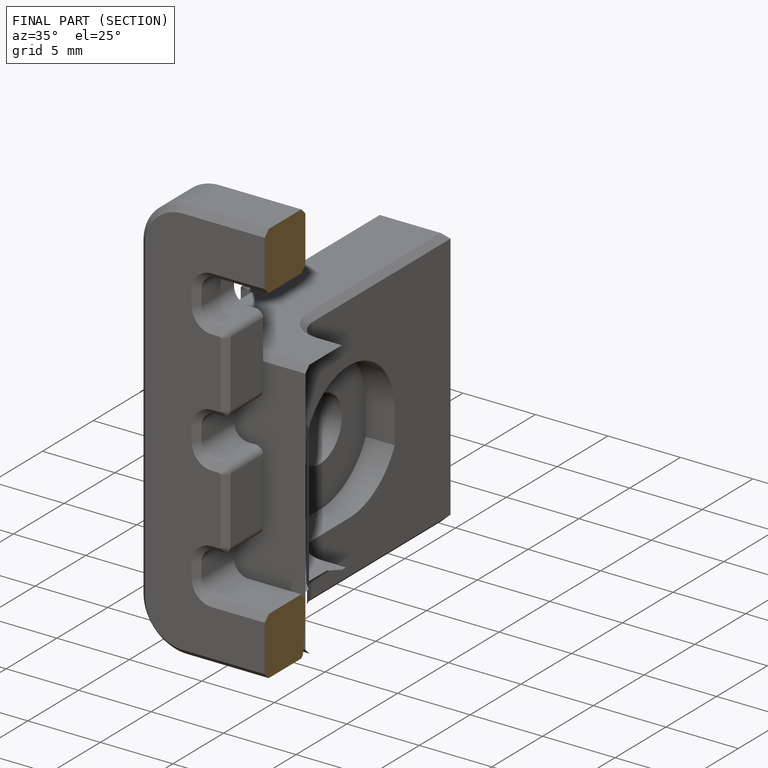
[diagram: finished part — half-section view (interior)]
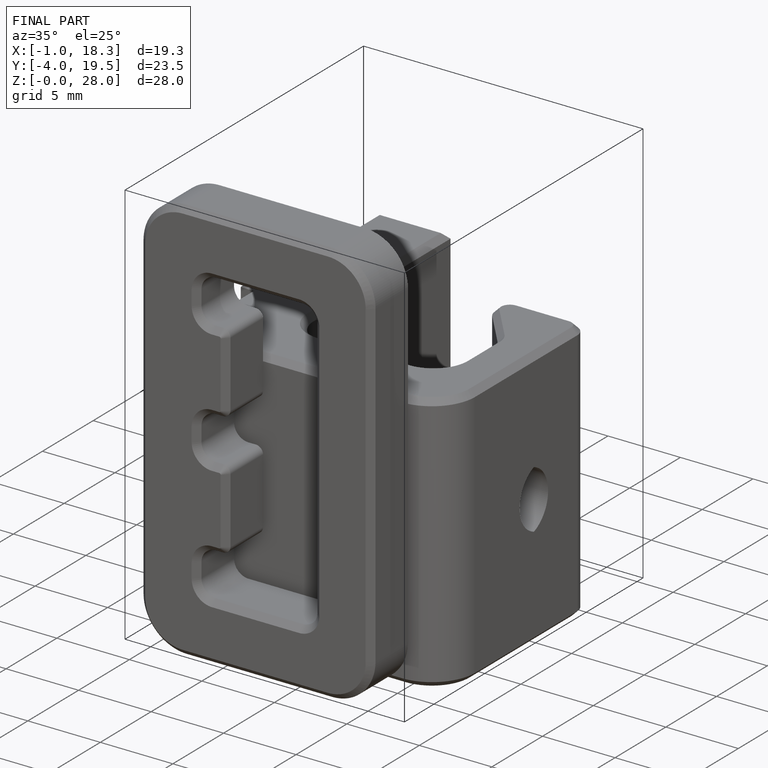
[diagram: finished part — iso view with bounding-box wireframe]
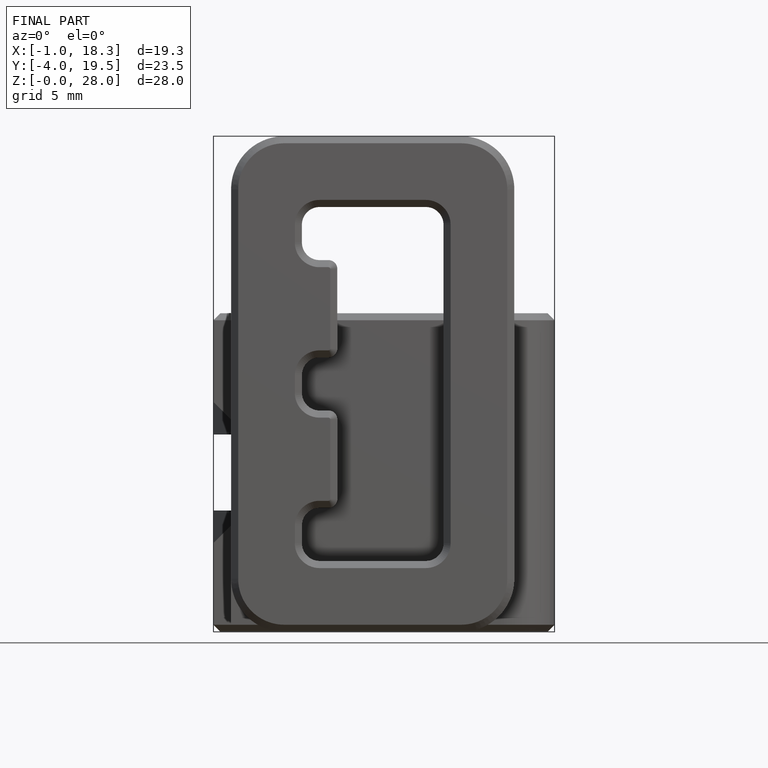
[diagram: finished part — front view with bounding-box wireframe]
